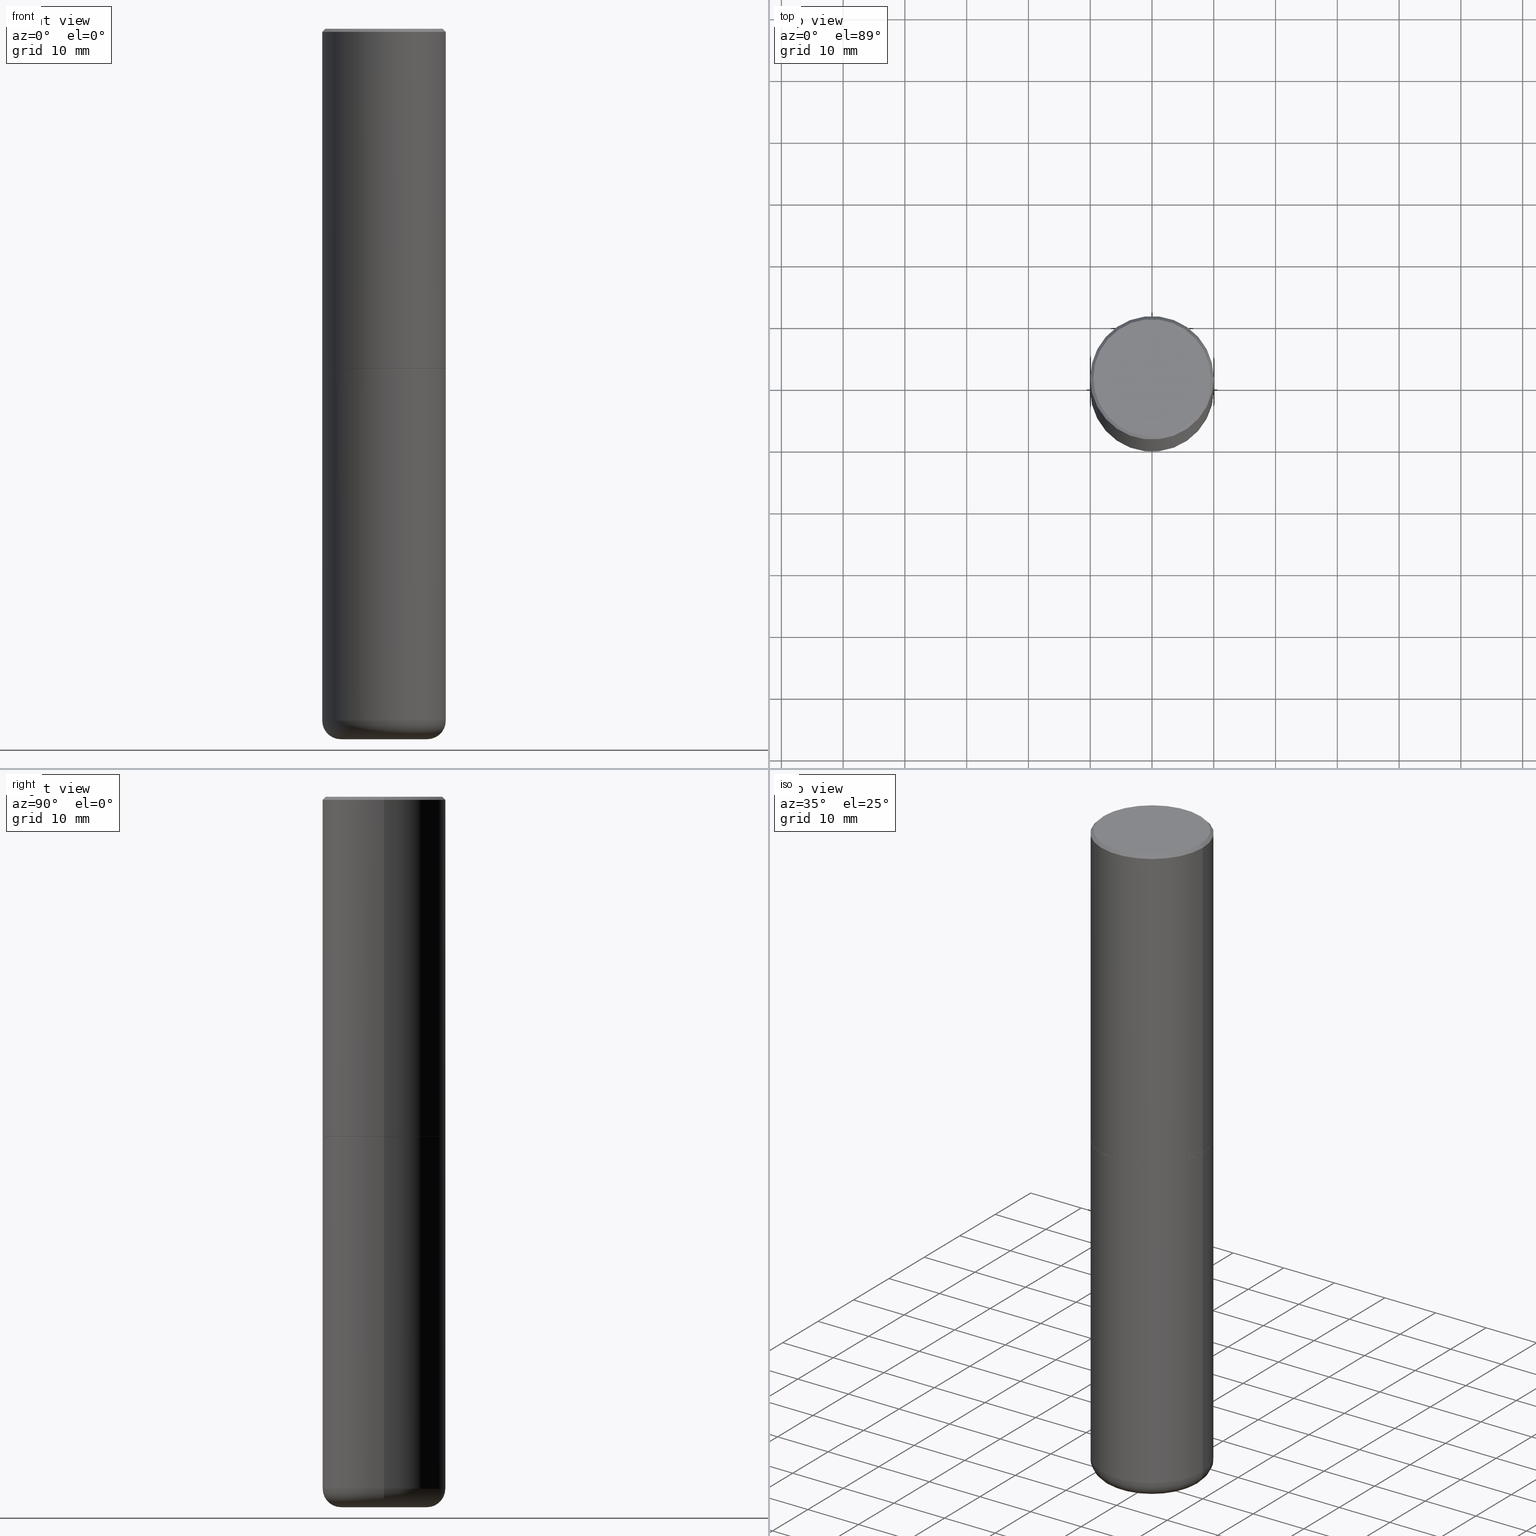
[diagram: canonical four-view strip — front | top / right | iso, engineering-drawing reading convention]
A machine part, canonical four-view strip (front | top / right | iso — engineering-drawing reading convention). The complete STEP part file that produces these views, byte-faithful:
ISO-10303-21;
HEADER;
FILE_DESCRIPTION (( 'STEP AP203' ),
    '1' );
FILE_NAME ('74833.STEP',
    '2024-05-02T19:22:15',
    ( '' ),
    ( '' ),
    'SwSTEP 2.0',
    'SolidWorks 2023',
    '' );
FILE_SCHEMA (( 'CONFIG_CONTROL_DESIGN' ));
ENDSEC;

DATA;
#1 = PRODUCT_RELATED_PRODUCT_CATEGORY ( 'detail', '', ( #241 ) ) ;
#2 = AXIS2_PLACEMENT_3D ( 'NONE', #32, #370, #250 ) ;
#3 = DIRECTION ( 'NONE',  ( 0.7071067811866199593, -2.468850131083015945E-15, 0.7071067811864750752 ) ) ;
#4 = ORIENTED_EDGE ( 'NONE', *, *, #326, .T. ) ;
#5 = EDGE_CURVE ( 'NONE', #162, #307, #29, .T. ) ;
#6 = DIRECTION ( 'NONE',  ( -1.000000000000000000, 6.982962677686265922E-15, -4.876176775795935793E-29 ) ) ;
#7 = EDGE_CURVE ( 'NONE', #286, #351, #149, .T. ) ;
#8 = CARTESIAN_POINT ( 'NONE',  ( 5.295418152913293224E-29, -7.560453691130945845E-15, -2.165399999999999547 ) ) ;
#9 = AXIS2_PLACEMENT_3D ( 'NONE', #35, #159, #190 ) ;
#10 = APPLICATION_CONTEXT ( 'configuration controlled 3d designs of mechanical parts and assemblies' ) ;
#11 = EDGE_CURVE ( 'NONE', #298, #412, #294, .T. ) ;
#12 = DIRECTION ( 'NONE',  ( -2.445468806185136597E-29, 3.491481338843145583E-15, 1.000000000000000000 ) ) ;
#13 = COORDINATED_UNIVERSAL_TIME_OFFSET ( 5, 0, .BEHIND. ) ;
#14 = CARTESIAN_POINT ( 'NONE',  ( -0.2756000000000000116, -1.322402767146636311E-14, -4.527599999999998737 ) ) ;
#15 = APPROVAL_STATUS ( 'not_yet_approved' ) ;
#16 = CARTESIAN_POINT ( 'NONE',  ( 0.2756000000000000116, -1.773253542371655569E-14, -4.527599999999998737 ) ) ;
#17 = CARTESIAN_POINT ( 'NONE',  ( 0.3736999999999999211, -2.667287895133367964E-15, 2.262311619753402158E-16 ) ) ;
#18 = AXIS2_PLACEMENT_3D ( 'NONE', #120, #389, #87 ) ;
#19 = VERTEX_POINT ( 'NONE', #332 ) ;
#20 = CALENDAR_DATE ( 2024, 2, 5 ) ;
#21 = CC_DESIGN_PERSON_AND_ORGANIZATION_ASSIGNMENT ( #108, #172, ( #195 ) ) ;
#22 = CARTESIAN_POINT ( 'NONE',  ( 1.078329470087335798E-28, -1.539568696362884818E-14, -4.409499999999999531 ) ) ;
#23 = ORIENTED_EDGE ( 'NONE', *, *, #245, .T. ) ;
#24 = TOROIDAL_SURFACE ( 'NONE', #186, 0.2756000000000000116, 0.1180999999999997052 ) ;
#25 = DATE_AND_TIME ( #214, #327 ) ;
#26 = EDGE_LOOP ( 'NONE', ( #133, #141 ) ) ;
#27 = AXIS2_PLACEMENT_3D ( 'NONE', #199, #170, #314 ) ;
#28 = AXIS2_PLACEMENT_3D ( 'NONE', #165, #204, #346 ) ;
#29 = LINE ( 'NONE', #219, #386 ) ;
#30 = CLOSED_SHELL ( 'NONE', ( #179, #330, #352, #292, #393, #45, #242, #301 ) ) ;
#31 = CARTESIAN_POINT ( 'NONE',  ( 5.295418152913293224E-29, -7.560453691130945845E-15, -2.165399999999999547 ) ) ;
#32 = CARTESIAN_POINT ( 'NONE',  ( 5.295418152913293224E-29, -7.560453691130945845E-15, -2.165399999999999547 ) ) ;
#33 = CARTESIAN_POINT ( 'NONE',  ( 0.2756000000000000116, -1.732019147759918314E-14, -4.409499999999999531 ) ) ;
#34 = DIRECTION ( 'NONE',  ( -2.445468806185136597E-29, 3.491481338843145583E-15, 1.000000000000000000 ) ) ;
#35 = CARTESIAN_POINT ( 'NONE',  ( 1.107210456688382074E-28, -1.580803090974622074E-14, -4.527599999999998737 ) ) ;
#36 = AXIS2_PLACEMENT_3D ( 'NONE', #284, #207, #316 ) ;
#37 = ORIENTED_EDGE ( 'NONE', *, *, #69, .T. ) ;
#38 = FACE_OUTER_BOUND ( 'NONE', #26, .T. ) ;
#39 = EDGE_CURVE ( 'NONE', #388, #162, #161, .T. ) ;
#40 = ORIENTED_EDGE ( 'NONE', *, *, #52, .F. ) ;
#41 = DIRECTION ( 'NONE',  ( -2.445468806185136597E-29, 3.491481338843145583E-15, 1.000000000000000000 ) ) ;
#42 = APPROVAL_DATE_TIME ( #200, #88 ) ;
#43 = CIRCLE ( 'NONE', #18, 0.3736999999999999211 ) ;
#44 = CIRCLE ( 'NONE', #319, 0.1180999999999997191 ) ;
#45 = ADVANCED_FACE ( 'NONE', ( #288 ), #118, .T. ) ;
#46 = EDGE_LOOP ( 'NONE', ( #277, #385, #23, #146 ) ) ;
#47 = CALENDAR_DATE ( 2024, 2, 5 ) ;
#48 = CARTESIAN_POINT ( 'NONE',  ( 4.890937612370294178E-31, -6.982962677686321191E-17, -0.02000000000000008715 ) ) ;
#49 = CARTESIAN_POINT ( 'NONE',  ( -0.3926999999999999935, -4.764853913452808876E-15, -2.165399999999999547 ) ) ;
#50 = EDGE_LOOP ( 'NONE', ( #68, #309, #148, #212 ) ) ;
#51 = CYLINDRICAL_SURFACE ( 'NONE', #275, 0.3936999999999999389 ) ;
#52 = EDGE_CURVE ( 'NONE', #412, #298, #329, .T. ) ;
#53 = AXIS2_PLACEMENT_3D ( 'NONE', #137, #142, #274 ) ;
#54 = APPROVAL_DATE_TIME ( #119, #57 ) ;
#55 = EDGE_LOOP ( 'NONE', ( #135, #37 ) ) ;
#56 = EDGE_CURVE ( 'NONE', #412, #162, #122, .T. ) ;
#57 = APPROVAL ( #387, 'UNSPECIFIED' ) ;
#58 = ORIENTED_EDGE ( 'NONE', *, *, #245, .F. ) ;
#59 = AXIS2_PLACEMENT_3D ( 'NONE', #248, #394, #354 ) ;
#60 = APPROVAL_PERSON_ORGANIZATION ( #145, #57, #318 ) ;
#61 = DIRECTION ( 'NONE',  ( 1.000000000000000000, -6.982962677686268288E-15, 0.000000000000000000 ) ) ;
#62 = DIRECTION ( 'NONE',  ( -1.000000000000000000, 7.105427357601005014E-15, 0.000000000000000000 ) ) ;
#63 = CARTESIAN_POINT ( 'NONE',  ( 0.3937000000000002720, -1.030615461599718763E-14, -2.164399999999999658 ) ) ;
#64 = DIRECTION ( 'NONE',  ( -2.445468806185136597E-29, 3.491481338843145583E-15, 1.000000000000000000 ) ) ;
#65 = ORIENTED_EDGE ( 'NONE', *, *, #272, .T. ) ;
#66 = CARTESIAN_POINT ( 'NONE',  ( 5.292972684107107621E-29, -7.556962209792102838E-15, -2.164399999999999658 ) ) ;
#67 = CC_DESIGN_PERSON_AND_ORGANIZATION_ASSIGNMENT ( #134, #192, ( #241 ) ) ;
#68 = ORIENTED_EDGE ( 'NONE', *, *, #226, .F. ) ;
#69 = EDGE_CURVE ( 'NONE', #351, #286, #43, .T. ) ;
#70 = DIRECTION ( 'NONE',  ( 1.000000000000000000, -6.982962677686266711E-15, 0.000000000000000000 ) ) ;
#71 = AXIS2_PLACEMENT_3D ( 'NONE', #256, #333, #6 ) ;
#72 = PERSON_AND_ORGANIZATION ( #198, #320 ) ;
#73 = CALENDAR_DATE ( 2024, 2, 5 ) ;
#74 = FACE_OUTER_BOUND ( 'NONE', #348, .T. ) ;
#75 = LOCAL_TIME ( 15, 22, 15.00000000000000000, #227 ) ;
#76 = DIRECTION ( 'NONE',  ( -2.445468806185136597E-29, 3.491481338843145583E-15, 1.000000000000000000 ) ) ;
#77 = CARTESIAN_POINT ( 'NONE',  ( 0.000000000000000000, 0.000000000000000000, 0.000000000000000000 ) ) ;
#78 = DIRECTION ( 'NONE',  ( 1.000000000000000000, -6.982962677686268288E-15, 4.883557194083112901E-29 ) ) ;
#79 = DIRECTION ( 'NONE',  ( 0.7071067811865454633, -7.319954787623248157E-15, -0.7071067811865495711 ) ) ;
#80 = CALENDAR_DATE ( 2024, 2, 5 ) ;
#81 = EDGE_CURVE ( 'NONE', #289, #325, #213, .T. ) ;
#82 = PLANE ( 'NONE',  #181 ) ;
#83 = CC_DESIGN_PERSON_AND_ORGANIZATION_ASSIGNMENT ( #175, #313, ( #195 ) ) ;
#84 = VECTOR ( 'NONE', #371, 39.37007874015748143 ) ;
#85 = APPLICATION_CONTEXT ( 'configuration controlled 3d designs of mechanical parts and assemblies' ) ;
#86 = ORIENTED_EDGE ( 'NONE', *, *, #384, .T. ) ;
#87 = DIRECTION ( 'NONE',  ( 1.000000000000000000, -6.982962677686266711E-15, 4.877734241229876808E-29 ) ) ;
#88 = APPROVAL ( #196, 'UNSPECIFIED' ) ;
#89 = VERTEX_POINT ( 'NONE', #14 ) ;
#90 = VECTOR ( 'NONE', #104, 39.37007874015748143 ) ;
#91 = ORIENTED_EDGE ( 'NONE', *, *, #39, .F. ) ;
#92 = DIRECTION ( 'NONE',  ( 2.438088387897960049E-29, -3.491481338843145188E-15, -1.000000000000000000 ) ) ;
#93 = DIRECTION ( 'NONE',  ( -2.445468806185136597E-29, 3.491481338843145583E-15, 1.000000000000000000 ) ) ;
#94 = FACE_OUTER_BOUND ( 'NONE', #50, .T. ) ;
#95 = CARTESIAN_POINT ( 'NONE',  ( -0.3937000000000000499, -8.680663576692383017E-15, -2.165399999999999547 ) ) ;
#96 = EDGE_CURVE ( 'NONE', #325, #306, #296, .T. ) ;
#97 = DESIGN_CONTEXT ( 'detailed design', #10, 'design' ) ;
#98 = DIRECTION ( 'NONE',  ( 7.105427357601001859E-15, 1.000000000000000000, -3.491481338843145583E-15 ) ) ;
#99 = DIRECTION ( 'NONE',  ( 1.000000000000000000, -6.982962677686268288E-15, 4.883557194083112901E-29 ) ) ;
#100 = DIRECTION ( 'NONE',  ( 2.438088387897960049E-29, -3.491481338843145188E-15, -1.000000000000000000 ) ) ;
#101 = CIRCLE ( 'NONE', #243, 0.3936999999999999389 ) ;
#102 = FACE_OUTER_BOUND ( 'NONE', #138, .T. ) ;
#103 = APPLICATION_PROTOCOL_DEFINITION ( 'international standard', 'config_control_design', 1994, #85 ) ;
#104 = DIRECTION ( 'NONE',  ( -0.7071067811865454633, 2.468850131082235367E-15, -0.7071067811865495711 ) ) ;
#105 = CIRCLE ( 'NONE', #9, 0.2756000000000000116 ) ;
#106 = DIRECTION ( 'NONE',  ( 2.445468806185136597E-29, -3.491481338843145583E-15, -1.000000000000000000 ) ) ;
#107 = DIRECTION ( 'NONE',  ( -2.445468806185136877E-29, 3.491481338843145188E-15, 1.000000000000000000 ) ) ;
#108 = PERSON_AND_ORGANIZATION ( #198, #320 ) ;
#109 = EDGE_LOOP ( 'NONE', ( #40, #345 ) ) ;
#110 = EDGE_CURVE ( 'NONE', #89, #289, #44, .T. ) ;
#111 = CARTESIAN_POINT ( 'NONE',  ( -0.3926999999999999935, -4.770152367801032067E-15, -2.165399999999999547 ) ) ;
#112 = ORIENTED_EDGE ( 'NONE', *, *, #114, .F. ) ;
#113 = CONICAL_SURFACE ( 'NONE', #267, 0.3937000000000001054, 0.7853981633974453924 ) ;
#114 = EDGE_CURVE ( 'NONE', #306, #325, #143, .T. ) ;
#115 = ADVANCED_FACE ( 'NONE', ( #156 ), #291, .F. ) ;
#116 = ORIENTED_EDGE ( 'NONE', *, *, #56, .F. ) ;
#117 =( GEOMETRIC_REPRESENTATION_CONTEXT ( 3 ) GLOBAL_UNCERTAINTY_ASSIGNED_CONTEXT ( ( #253 ) ) GLOBAL_UNIT_ASSIGNED_CONTEXT ( ( #407, #410, #308 ) ) REPRESENTATION_CONTEXT ( 'NONE', 'WORKASPACE' ) );
#118 = CONICAL_SURFACE ( 'NONE', #203, 0.3926999999999999935, 0.7853981633975507526 ) ;
#119 = DATE_AND_TIME ( #80, #402 ) ;
#120 = CARTESIAN_POINT ( 'NONE',  ( -5.532412495976664402E-45, 7.898818803016371119E-31, 2.262311619753217762E-16 ) ) ;
#121 = SHAPE_DEFINITION_REPRESENTATION ( #180, #144 ) ;
#122 = LINE ( 'NONE', #280, #246 ) ;
#123 = DIRECTION ( 'NONE',  ( -2.445468806185136597E-29, 3.491481338843145583E-15, 1.000000000000000000 ) ) ;
#124 = AXIS2_PLACEMENT_3D ( 'NONE', #349, #276, #418 ) ;
#125 = ORIENTED_EDGE ( 'NONE', *, *, #81, .F. ) ;
#126 = FACE_OUTER_BOUND ( 'NONE', #361, .T. ) ;
#127 = DIRECTION ( 'NONE',  ( -2.438088387897960049E-29, 3.491481338843145188E-15, 1.000000000000000000 ) ) ;
#128 = CARTESIAN_POINT ( 'NONE',  ( 5.295418152913293224E-29, -7.560453691130945845E-15, -2.165399999999999547 ) ) ;
#129 = LOCAL_TIME ( 15, 22, 15.00000000000000000, #376 ) ;
#130 = ORIENTED_EDGE ( 'NONE', *, *, #96, .T. ) ;
#131 = DATE_AND_TIME ( #20, #75 ) ;
#132 = CARTESIAN_POINT ( 'NONE',  ( 0.000000000000000000, 0.000000000000000000, 0.000000000000000000 ) ) ;
#133 = ORIENTED_EDGE ( 'NONE', *, *, #355, .F. ) ;
#134 = PERSON_AND_ORGANIZATION ( #198, #320 ) ;
#135 = ORIENTED_EDGE ( 'NONE', *, *, #7, .T. ) ;
#136 = DIRECTION ( 'NONE',  ( 1.000000000000000000, -6.982962677686265133E-15, 0.000000000000000000 ) ) ;
#137 = CARTESIAN_POINT ( 'NONE',  ( 0.000000000000000000, 0.000000000000000000, 0.000000000000000000 ) ) ;
#138 = EDGE_LOOP ( 'NONE', ( #337, #283, #150, #238 ) ) ;
#139 = APPROVAL ( #15, 'UNSPECIFIED' ) ;
#140 = EDGE_LOOP ( 'NONE', ( #4, #365, #396, #184 ) ) ;
#141 = ORIENTED_EDGE ( 'NONE', *, *, #322, .F. ) ;
#142 = DIRECTION ( 'NONE',  ( -2.445468806185136597E-29, 3.491481338843145583E-15, 1.000000000000000000 ) ) ;
#143 = CIRCLE ( 'NONE', #2, 0.3937000000000000499 ) ;
#144 = ADVANCED_BREP_SHAPE_REPRESENTATION ( '74833', ( #416, #260, #28 ), #117 ) ;
#145 = PERSON_AND_ORGANIZATION ( #198, #320 ) ;
#146 = ORIENTED_EDGE ( 'NONE', *, *, #400, .T. ) ;
#147 = AXIS2_PLACEMENT_3D ( 'NONE', #158, #167, #368 ) ;
#148 = ORIENTED_EDGE ( 'NONE', *, *, #5, .T. ) ;
#149 = CIRCLE ( 'NONE', #208, 0.3736999999999999211 ) ;
#150 = ORIENTED_EDGE ( 'NONE', *, *, #236, .F. ) ;
#151 = CC_DESIGN_DATE_AND_TIME_ASSIGNMENT ( #163, #271, ( #321 ) ) ;
#152 = DIRECTION ( 'NONE',  ( -2.445468806185136597E-29, 3.491481338843145583E-15, 1.000000000000000000 ) ) ;
#153 = CIRCLE ( 'NONE', #36, 0.2756000000000000116 ) ;
#154 = DIRECTION ( 'NONE',  ( 1.000000000000000000, -6.982962677686266711E-15, 0.000000000000000000 ) ) ;
#155 = SECURITY_CLASSIFICATION ( '', '', #273 ) ;
#156 = FACE_OUTER_BOUND ( 'NONE', #171, .T. ) ;
#157 = DIRECTION ( 'NONE',  ( 1.000000000000000000, -6.982962677686273021E-15, 0.000000000000000000 ) ) ;
#158 = CARTESIAN_POINT ( 'NONE',  ( 4.890937612370294178E-31, -6.982962677686321191E-17, -0.02000000000000008715 ) ) ;
#159 = DIRECTION ( 'NONE',  ( -2.445468806185136597E-29, 3.491481338843145583E-15, 1.000000000000000000 ) ) ;
#160 = CC_DESIGN_PERSON_AND_ORGANIZATION_ASSIGNMENT ( #169, #201, ( #321 ) ) ;
#161 = CIRCLE ( 'NONE', #191, 0.3937000000000002720 ) ;
#162 = VERTEX_POINT ( 'NONE', #63 ) ;
#163 = DATE_AND_TIME ( #47, #358 ) ;
#164 = VECTOR ( 'NONE', #107, 39.37007874015748143 ) ;
#165 = CARTESIAN_POINT ( 'NONE',  ( 0.000000000000000000, 0.000000000000000000, 0.000000000000000000 ) ) ;
#166 = DIRECTION ( 'NONE',  ( 1.000000000000000000, -6.982962677686269077E-15, 0.000000000000000000 ) ) ;
#167 = DIRECTION ( 'NONE',  ( 2.445468806185136597E-29, -3.491481338843145583E-15, -1.000000000000000000 ) ) ;
#168 = FACE_OUTER_BOUND ( 'NONE', #140, .T. ) ;
#169 = PERSON_AND_ORGANIZATION ( #198, #320 ) ;
#170 = DIRECTION ( 'NONE',  ( -2.445468806185136597E-29, 3.491481338843145583E-15, 1.000000000000000000 ) ) ;
#171 = EDGE_LOOP ( 'NONE', ( #302, #130 ) ) ;
#172 = PERSON_AND_ORGANIZATION_ROLE ( 'creator' ) ;
#173 = ORIENTED_EDGE ( 'NONE', *, *, #110, .F. ) ;
#174 = VECTOR ( 'NONE', #254, 39.37007874015748143 ) ;
#175 = PERSON_AND_ORGANIZATION ( #198, #320 ) ;
#176 = ADVANCED_FACE ( 'NONE', ( #102 ), #24, .T. ) ;
#177 = DIRECTION ( 'NONE',  ( -2.445468806185136597E-29, 3.491481338843145583E-15, 1.000000000000000000 ) ) ;
#178 = DIRECTION ( 'NONE',  ( -2.445468806185136597E-29, 3.491481338843145583E-15, 1.000000000000000000 ) ) ;
#179 = ADVANCED_FACE ( 'NONE', ( #126 ), #353, .T. ) ;
#180 = PRODUCT_DEFINITION_SHAPE ( 'NONE', 'NONE',  #321 ) ;
#181 = AXIS2_PLACEMENT_3D ( 'NONE', #287, #92, #363 ) ;
#182 = ORIENTED_EDGE ( 'NONE', *, *, #322, .T. ) ;
#183 = ORIENTED_EDGE ( 'NONE', *, *, #69, .F. ) ;
#184 = ORIENTED_EDGE ( 'NONE', *, *, #5, .F. ) ;
#185 = ADVANCED_FACE ( 'NONE', ( #240 ), #202, .T. ) ;
#186 = AXIS2_PLACEMENT_3D ( 'NONE', #255, #398, #99 ) ;
#187 = ORIENTED_EDGE ( 'NONE', *, *, #236, .T. ) ;
#188 = CARTESIAN_POINT ( 'NONE',  ( 0.3937000000000001054, -2.770807688499516128E-15, -0.02000000000000008715 ) ) ;
#189 = DIRECTION ( 'NONE',  ( 1.000000000000000000, -6.982962677686268288E-15, 0.000000000000000000 ) ) ;
#190 = DIRECTION ( 'NONE',  ( 1.000000000000000000, -6.982962677686265922E-15, 0.000000000000000000 ) ) ;
#191 = AXIS2_PLACEMENT_3D ( 'NONE', #390, #34, #359 ) ;
#192 = PERSON_AND_ORGANIZATION_ROLE ( 'design_owner' ) ;
#193 = LINE ( 'NONE', #197, #90 ) ;
#194 = AXIS2_PLACEMENT_3D ( 'NONE', #408, #127, #405 ) ;
#195 = PRODUCT_DEFINITION_FORMATION_WITH_SPECIFIED_SOURCE ( 'ANY', '', #241, .NOT_KNOWN. ) ;
#196 = APPROVAL_STATUS ( 'not_yet_approved' ) ;
#197 = CARTESIAN_POINT ( 'NONE',  ( -0.3937000000000001054, 2.679362779428220707E-15, -0.02000000000000008715 ) ) ;
#198 = PERSON ( 'UNSPECIFIED', 'UNSPECIFIED', 'UNSPECIFIED', ('UNSPECIFIED'), ('UNSPECIFIED'), ('UNSPECIFIED') ) ;
#199 = CARTESIAN_POINT ( 'NONE',  ( 5.295418152913293224E-29, -7.560453691130945845E-15, -2.165399999999999547 ) ) ;
#200 = DATE_AND_TIME ( #73, #129 ) ;
#201 = PERSON_AND_ORGANIZATION_ROLE ( 'creator' ) ;
#202 = TOROIDAL_SURFACE ( 'NONE', #220, 0.2756000000000000116, 0.1180999999999997052 ) ;
#203 = AXIS2_PLACEMENT_3D ( 'NONE', #8, #123, #61 ) ;
#204 = DIRECTION ( 'NONE',  ( 0.000000000000000000, 0.000000000000000000, 1.000000000000000000 ) ) ;
#205 = ORIENTED_EDGE ( 'NONE', *, *, #395, .T. ) ;
#206 = CARTESIAN_POINT ( 'NONE',  ( 0.3936999999999998279, -1.814487936983393140E-14, -4.409499999999999531 ) ) ;
#207 = DIRECTION ( 'NONE',  ( -2.445468806185136597E-29, 3.491481338843145583E-15, 1.000000000000000000 ) ) ;
#208 = AXIS2_PLACEMENT_3D ( 'NONE', #360, #93, #251 ) ;
#209 = CARTESIAN_POINT ( 'NONE',  ( 1.078329470087335798E-28, -1.539568696362884818E-14, -4.409499999999999531 ) ) ;
#210 = CIRCLE ( 'NONE', #379, 0.3937000000000001054 ) ;
#211 = DATE_TIME_ROLE ( 'classification_date' ) ;
#212 = ORIENTED_EDGE ( 'NONE', *, *, #400, .F. ) ;
#213 = LINE ( 'NONE', #244, #174 ) ;
#214 = CALENDAR_DATE ( 2024, 2, 5 ) ;
#215 = VERTEX_POINT ( 'NONE', #206 ) ;
#216 = AXIS2_PLACEMENT_3D ( 'NONE', #77, #152, #237 ) ;
#217 = ADVANCED_FACE ( 'NONE', ( #74 ), #51, .T. ) ;
#218 = ORIENTED_EDGE ( 'NONE', *, *, #11, .T. ) ;
#219 = CARTESIAN_POINT ( 'NONE',  ( 0.3937000000000002164, -2.749192406205084794E-15, 1.919750796630861012E-29 ) ) ;
#220 = AXIS2_PLACEMENT_3D ( 'NONE', #22, #382, #78 ) ;
#221 = DIRECTION ( 'NONE',  ( -1.000000000000000000, 6.982962677686265922E-15, -4.876176775795935793E-29 ) ) ;
#222 = CARTESIAN_POINT ( 'NONE',  ( -0.3937000000000002164, 2.797406750687515970E-15, -1.936584745033357576E-29 ) ) ;
#223 = CARTESIAN_POINT ( 'NONE',  ( 4.890937612370294178E-31, -6.982962677686321191E-17, -0.02000000000000008715 ) ) ;
#224 = PLANE ( 'NONE',  #194 ) ;
#225 = ORIENTED_EDGE ( 'NONE', *, *, #81, .T. ) ;
#226 = EDGE_CURVE ( 'NONE', #388, #19, #403, .T. ) ;
#227 = COORDINATED_UNIVERSAL_TIME_OFFSET ( 5, 0, .BEHIND. ) ;
#228 = PLANE ( 'NONE',  #239 ) ;
#229 = CIRCLE ( 'NONE', #257, 0.3937000000000002720 ) ;
#230 = CC_DESIGN_APPROVAL ( #88, ( #195 ) ) ;
#231 = ORIENTED_EDGE ( 'NONE', *, *, #56, .T. ) ;
#232 = CLOSED_SHELL ( 'NONE', ( #261, #176, #115, #217, #185, #259 ) ) ;
#233 = EDGE_LOOP ( 'NONE', ( #173, #182, #338, #234 ) ) ;
#234 = ORIENTED_EDGE ( 'NONE', *, *, #272, .F. ) ;
#235 = LINE ( 'NONE', #344, #164 ) ;
#236 = EDGE_CURVE ( 'NONE', #215, #289, #391, .T. ) ;
#237 = DIRECTION ( 'NONE',  ( 1.000000000000000000, -6.982962677686266711E-15, 4.876176775795935793E-29 ) ) ;
#238 = ORIENTED_EDGE ( 'NONE', *, *, #317, .F. ) ;
#239 = AXIS2_PLACEMENT_3D ( 'NONE', #374, #100, #221 ) ;
#240 = FACE_OUTER_BOUND ( 'NONE', #233, .T. ) ;
#241 = PRODUCT ( '74833', '74833', '', ( #342 ) ) ;
#242 = ADVANCED_FACE ( 'NONE', ( #334 ), #224, .F. ) ;
#243 = AXIS2_PLACEMENT_3D ( 'NONE', #209, #41, #136 ) ;
#244 = CARTESIAN_POINT ( 'NONE',  ( -0.3936999999999999389, 2.797406750687513998E-15, -1.936584745033356455E-29 ) ) ;
#245 = EDGE_CURVE ( 'NONE', #286, #19, #193, .T. ) ;
#246 = VECTOR ( 'NONE', #3, 39.37007874015748143 ) ;
#247 = CARTESIAN_POINT ( 'NONE',  ( 0.3937000000000000499, -1.030964609733602906E-14, -2.165399999999999547 ) ) ;
#248 = CARTESIAN_POINT ( 'NONE',  ( 5.295418152913293224E-29, -7.560453691130945845E-15, -2.165399999999999547 ) ) ;
#249 = ORIENTED_EDGE ( 'NONE', *, *, #326, .F. ) ;
#250 = DIRECTION ( 'NONE',  ( 1.000000000000000000, -6.982962677686265133E-15, 0.000000000000000000 ) ) ;
#251 = DIRECTION ( 'NONE',  ( 1.000000000000000000, -6.982962677686266711E-15, 4.877734241229876808E-29 ) ) ;
#252 = CARTESIAN_POINT ( 'NONE',  ( -0.3937000000000002720, -1.015989167596965718E-15, -2.164399999999999658 ) ) ;
#253 = UNCERTAINTY_MEASURE_WITH_UNIT (LENGTH_MEASURE( 1.000000000000000082E-05 ), #407, 'distance_accuracy_value', 'NONE');
#254 = DIRECTION ( 'NONE',  ( -2.445468806185136877E-29, 3.491481338843145188E-15, 1.000000000000000000 ) ) ;
#255 = CARTESIAN_POINT ( 'NONE',  ( 1.078329470087335798E-28, -1.539568696362884818E-14, -4.409499999999999531 ) ) ;
#256 = CARTESIAN_POINT ( 'NONE',  ( 5.295418152913293224E-29, -7.560453691130945845E-15, -2.165399999999999547 ) ) ;
#257 = AXIS2_PLACEMENT_3D ( 'NONE', #66, #178, #166 ) ;
#258 = DIRECTION ( 'NONE',  ( 1.000000000000000000, -6.982962677686266711E-15, 4.876176775795935793E-29 ) ) ;
#259 = ADVANCED_FACE ( 'NONE', ( #38 ), #228, .T. ) ;
#260 = MANIFOLD_SOLID_BREP ( 'Body-Move/Copy2[2]', #30 ) ;
#261 = ADVANCED_FACE ( 'NONE', ( #366 ), #312, .T. ) ;
#262 = APPROVAL_DATE_TIME ( #131, #139 ) ;
#263 = DIRECTION ( 'NONE',  ( -2.445468806185136597E-29, 3.491481338843145583E-15, 1.000000000000000000 ) ) ;
#264 = CARTESIAN_POINT ( 'NONE',  ( 4.890937612370294178E-31, -6.982962677686321191E-17, -0.02000000000000008715 ) ) ;
#265 = APPROVAL_ROLE ( '' ) ;
#266 = CARTESIAN_POINT ( 'NONE',  ( 1.078329470087335798E-28, -1.539568696362884818E-14, -4.409499999999999531 ) ) ;
#267 = AXIS2_PLACEMENT_3D ( 'NONE', #264, #106, #324 ) ;
#268 = CARTESIAN_POINT ( 'NONE',  ( -0.3736999999999999211, 2.644447966039789453E-15, 2.262311619753034352E-16 ) ) ;
#269 = LINE ( 'NONE', #383, #290 ) ;
#270 = ORIENTED_EDGE ( 'NONE', *, *, #377, .F. ) ;
#271 = DATE_TIME_ROLE ( 'creation_date' ) ;
#272 = EDGE_CURVE ( 'NONE', #289, #215, #101, .T. ) ;
#273 = SECURITY_CLASSIFICATION_LEVEL ( 'unclassified' ) ;
#274 = DIRECTION ( 'NONE',  ( 1.000000000000000000, -6.982962677686266711E-15, 4.876176775795935793E-29 ) ) ;
#275 = AXIS2_PLACEMENT_3D ( 'NONE', #132, #263, #258 ) ;
#276 = DIRECTION ( 'NONE',  ( -2.445468806185136597E-29, 3.491481338843145583E-15, 1.000000000000000000 ) ) ;
#277 = ORIENTED_EDGE ( 'NONE', *, *, #347, .F. ) ;
#278 = ORIENTED_EDGE ( 'NONE', *, *, #52, .T. ) ;
#279 = AXIS2_PLACEMENT_3D ( 'NONE', #266, #12, #369 ) ;
#280 = CARTESIAN_POINT ( 'NONE',  ( 0.3926999999999999935, -1.030266313465834305E-14, -2.165399999999999547 ) ) ;
#281 = AXIS2_PLACEMENT_3D ( 'NONE', #128, #362, #328 ) ;
#282 = PERSON_AND_ORGANIZATION_ROLE ( 'classification_officer' ) ;
#283 = ORIENTED_EDGE ( 'NONE', *, *, #110, .T. ) ;
#284 = CARTESIAN_POINT ( 'NONE',  ( 1.107210456688382074E-28, -1.580803090974622074E-14, -4.527599999999998737 ) ) ;
#285 = CC_DESIGN_DATE_AND_TIME_ASSIGNMENT ( #25, #211, ( #155 ) ) ;
#286 = VERTEX_POINT ( 'NONE', #268 ) ;
#287 = CARTESIAN_POINT ( 'NONE',  ( 2.609533152651356620E-15, 0.3736999999999999211, -1.191650995338022328E-15 ) ) ;
#288 = FACE_OUTER_BOUND ( 'NONE', #323, .T. ) ;
#289 = VERTEX_POINT ( 'NONE', #411 ) ;
#290 = VECTOR ( 'NONE', #79, 39.37007874015748143 ) ;
#291 = PLANE ( 'NONE',  #71 ) ;
#292 = ADVANCED_FACE ( 'NONE', ( #406 ), #341, .T. ) ;
#293 = DIRECTION ( 'NONE',  ( -2.445468806185136877E-29, 3.491481338843145188E-15, 1.000000000000000000 ) ) ;
#294 = CIRCLE ( 'NONE', #295, 0.3926999999999999935 ) ;
#295 = AXIS2_PLACEMENT_3D ( 'NONE', #31, #64, #189 ) ;
#296 = CIRCLE ( 'NONE', #281, 0.3937000000000000499 ) ;
#297 = CC_DESIGN_APPROVAL ( #57, ( #155 ) ) ;
#298 = VERTEX_POINT ( 'NONE', #49 ) ;
#299 = PERSON_AND_ORGANIZATION ( #198, #320 ) ;
#300 = ORIENTED_EDGE ( 'NONE', *, *, #395, .F. ) ;
#301 = ADVANCED_FACE ( 'NONE', ( #417 ), #82, .F. ) ;
#302 = ORIENTED_EDGE ( 'NONE', *, *, #114, .T. ) ;
#303 = CYLINDRICAL_SURFACE ( 'NONE', #53, 0.3937000000000002164 ) ;
#304 = CARTESIAN_POINT ( 'NONE',  ( 0.3926999999999999935, -1.030266313465834305E-14, -2.165399999999999547 ) ) ;
#305 = DIMENSIONAL_EXPONENTS ( 1.000000000000000000, 0.000000000000000000, 0.000000000000000000, 0.000000000000000000, 0.000000000000000000, 0.000000000000000000, 0.000000000000000000 ) ;
#306 = VERTEX_POINT ( 'NONE', #247 ) ;
#307 = VERTEX_POINT ( 'NONE', #188 ) ;
#308 =( NAMED_UNIT ( * ) SI_UNIT ( $, .STERADIAN. ) SOLID_ANGLE_UNIT ( ) );
#309 = ORIENTED_EDGE ( 'NONE', *, *, #39, .T. ) ;
#310 = CIRCLE ( 'NONE', #331, 0.3937000000000001054 ) ;
#311 = CC_DESIGN_APPROVAL ( #139, ( #321 ) ) ;
#312 = CYLINDRICAL_SURFACE ( 'NONE', #124, 0.3936999999999999389 ) ;
#313 = PERSON_AND_ORGANIZATION_ROLE ( 'design_supplier' ) ;
#314 = DIRECTION ( 'NONE',  ( 1.000000000000000000, -6.982962677686268288E-15, 0.000000000000000000 ) ) ;
#315 = COORDINATED_UNIVERSAL_TIME_OFFSET ( 5, 0, .BEHIND. ) ;
#316 = DIRECTION ( 'NONE',  ( 1.000000000000000000, -6.982962677686265922E-15, 0.000000000000000000 ) ) ;
#317 = EDGE_CURVE ( 'NONE', #372, #215, #401, .T. ) ;
#318 = APPROVAL_ROLE ( '' ) ;
#319 = AXIS2_PLACEMENT_3D ( 'NONE', #392, #98, #62 ) ;
#320 = ORGANIZATION ( 'UNSPECIFIED', 'UNSPECIFIED', '' ) ;
#321 = PRODUCT_DEFINITION ( 'UNKNOWN', '', #195, #97 ) ;
#322 = EDGE_CURVE ( 'NONE', #89, #372, #105, .T. ) ;
#323 = EDGE_LOOP ( 'NONE', ( #300, #218, #231, #91 ) ) ;
#324 = DIRECTION ( 'NONE',  ( -1.000000000000000000, 6.982962677686266711E-15, 0.000000000000000000 ) ) ;
#325 = VERTEX_POINT ( 'NONE', #95 ) ;
#326 = EDGE_CURVE ( 'NONE', #162, #388, #229, .T. ) ;
#327 = LOCAL_TIME ( 15, 22, 15.00000000000000000, #315 ) ;
#328 = DIRECTION ( 'NONE',  ( 1.000000000000000000, -6.982962677686265133E-15, 0.000000000000000000 ) ) ;
#329 = CIRCLE ( 'NONE', #59, 0.3926999999999999935 ) ;
#330 = ADVANCED_FACE ( 'NONE', ( #168 ), #303, .T. ) ;
#331 = AXIS2_PLACEMENT_3D ( 'NONE', #223, #76, #70 ) ;
#332 = CARTESIAN_POINT ( 'NONE',  ( -0.3937000000000001054, 2.679362779428220707E-15, -0.02000000000000008715 ) ) ;
#333 = DIRECTION ( 'NONE',  ( 2.438088387897960049E-29, -3.491481338843145188E-15, -1.000000000000000000 ) ) ;
#334 = FACE_OUTER_BOUND ( 'NONE', #109, .T. ) ;
#335 = AXIS2_PLACEMENT_3D ( 'NONE', #33, #399, #157 ) ;
#336 = APPROVAL_PERSON_ORGANIZATION ( #72, #88, #265 ) ;
#337 = ORIENTED_EDGE ( 'NONE', *, *, #355, .T. ) ;
#338 = ORIENTED_EDGE ( 'NONE', *, *, #317, .T. ) ;
#339 = APPROVAL_ROLE ( '' ) ;
#340 = ORIENTED_EDGE ( 'NONE', *, *, #96, .F. ) ;
#341 = CONICAL_SURFACE ( 'NONE', #147, 0.3937000000000001054, 0.7853981633974453924 ) ;
#342 = MECHANICAL_CONTEXT ( 'NONE', #85, 'mechanical' ) ;
#343 = CC_DESIGN_SECURITY_CLASSIFICATION ( #155, ( #195 ) ) ;
#344 = CARTESIAN_POINT ( 'NONE',  ( 0.3936999999999999389, -2.749192406205082822E-15, 1.919750796630859611E-29 ) ) ;
#345 = ORIENTED_EDGE ( 'NONE', *, *, #11, .F. ) ;
#346 = DIRECTION ( 'NONE',  ( 1.000000000000000000, 0.000000000000000000, 0.000000000000000000 ) ) ;
#347 = EDGE_CURVE ( 'NONE', #351, #307, #269, .T. ) ;
#348 = EDGE_LOOP ( 'NONE', ( #125, #65, #357, #340 ) ) ;
#349 = CARTESIAN_POINT ( 'NONE',  ( 0.000000000000000000, 0.000000000000000000, 0.000000000000000000 ) ) ;
#350 = FACE_OUTER_BOUND ( 'NONE', #375, .T. ) ;
#351 = VERTEX_POINT ( 'NONE', #17 ) ;
#352 = ADVANCED_FACE ( 'NONE', ( #350 ), #113, .T. ) ;
#353 = CONICAL_SURFACE ( 'NONE', #27, 0.3926999999999999935, 0.7853981633975507526 ) ;
#354 = DIRECTION ( 'NONE',  ( 1.000000000000000000, -6.982962677686268288E-15, 0.000000000000000000 ) ) ;
#355 = EDGE_CURVE ( 'NONE', #372, #89, #153, .T. ) ;
#356 = COORDINATED_UNIVERSAL_TIME_OFFSET ( 5, 0, .BEHIND. ) ;
#357 = ORIENTED_EDGE ( 'NONE', *, *, #377, .T. ) ;
#358 = LOCAL_TIME ( 15, 22, 15.00000000000000000, #13 ) ;
#359 = DIRECTION ( 'NONE',  ( 1.000000000000000000, -6.982962677686269077E-15, 0.000000000000000000 ) ) ;
#360 = CARTESIAN_POINT ( 'NONE',  ( -5.532412495976664402E-45, 7.898818803016371119E-31, 2.262311619753217762E-16 ) ) ;
#361 = EDGE_LOOP ( 'NONE', ( #278, #205, #249, #116 ) ) ;
#362 = DIRECTION ( 'NONE',  ( -2.445468806185136597E-29, 3.491481338843145583E-15, 1.000000000000000000 ) ) ;
#363 = DIRECTION ( 'NONE',  ( -1.000000000000000000, 6.982962677686265922E-15, -4.876176775795935793E-29 ) ) ;
#364 = APPROVAL_PERSON_ORGANIZATION ( #299, #139, #339 ) ;
#365 = ORIENTED_EDGE ( 'NONE', *, *, #226, .T. ) ;
#366 = FACE_OUTER_BOUND ( 'NONE', #378, .T. ) ;
#367 = CC_DESIGN_PERSON_AND_ORGANIZATION_ASSIGNMENT ( #414, #282, ( #155 ) ) ;
#368 = DIRECTION ( 'NONE',  ( -1.000000000000000000, 6.982962677686266711E-15, 0.000000000000000000 ) ) ;
#369 = DIRECTION ( 'NONE',  ( 1.000000000000000000, -6.982962677686265133E-15, 0.000000000000000000 ) ) ;
#370 = DIRECTION ( 'NONE',  ( -2.445468806185136597E-29, 3.491481338843145583E-15, 1.000000000000000000 ) ) ;
#371 = DIRECTION ( 'NONE',  ( -0.7071067811866199593, 7.493145998870616062E-15, 0.7071067811864750752 ) ) ;
#372 = VERTEX_POINT ( 'NONE', #16 ) ;
#373 = LINE ( 'NONE', #111, #84 ) ;
#374 = CARTESIAN_POINT ( 'NONE',  ( 1.733990391732979190E-28, -6.832185498923057657E-15, -4.527599999999998737 ) ) ;
#375 = EDGE_LOOP ( 'NONE', ( #183, #415, #86, #58 ) ) ;
#376 = COORDINATED_UNIVERSAL_TIME_OFFSET ( 5, 0, .BEHIND. ) ;
#377 = EDGE_CURVE ( 'NONE', #215, #306, #235, .T. ) ;
#378 = EDGE_LOOP ( 'NONE', ( #187, #225, #112, #270 ) ) ;
#379 = AXIS2_PLACEMENT_3D ( 'NONE', #48, #177, #154 ) ;
#380 =( LENGTH_UNIT ( ) NAMED_UNIT ( * ) SI_UNIT ( $, .METRE. ) );
#381 = CYLINDRICAL_SURFACE ( 'NONE', #216, 0.3937000000000002164 ) ;
#382 = DIRECTION ( 'NONE',  ( -2.445468806185136597E-29, 3.491481338843145583E-15, 1.000000000000000000 ) ) ;
#383 = CARTESIAN_POINT ( 'NONE',  ( 0.3937000000000001054, -2.770807688499516128E-15, -0.02000000000000008715 ) ) ;
#384 = EDGE_CURVE ( 'NONE', #307, #19, #210, .T. ) ;
#385 = ORIENTED_EDGE ( 'NONE', *, *, #7, .F. ) ;
#386 = VECTOR ( 'NONE', #397, 39.37007874015748143 ) ;
#387 = APPROVAL_STATUS ( 'not_yet_approved' ) ;
#388 = VERTEX_POINT ( 'NONE', #252 ) ;
#389 = DIRECTION ( 'NONE',  ( -2.445468806185136597E-29, 3.491481338843145583E-15, 1.000000000000000000 ) ) ;
#390 = CARTESIAN_POINT ( 'NONE',  ( 5.292972684107107621E-29, -7.556962209792102838E-15, -2.164399999999999658 ) ) ;
#391 = CIRCLE ( 'NONE', #279, 0.3936999999999999389 ) ;
#392 = CARTESIAN_POINT ( 'NONE',  ( -0.2756000000000000116, -1.343743118387401317E-14, -4.409499999999999531 ) ) ;
#393 = ADVANCED_FACE ( 'NONE', ( #94 ), #381, .T. ) ;
#394 = DIRECTION ( 'NONE',  ( -2.445468806185136597E-29, 3.491481338843145583E-15, 1.000000000000000000 ) ) ;
#395 = EDGE_CURVE ( 'NONE', #298, #388, #373, .T. ) ;
#396 = ORIENTED_EDGE ( 'NONE', *, *, #384, .F. ) ;
#397 = DIRECTION ( 'NONE',  ( -2.445468806185136877E-29, 3.491481338843145188E-15, 1.000000000000000000 ) ) ;
#398 = DIRECTION ( 'NONE',  ( -2.445468806185136597E-29, 3.491481338843145583E-15, 1.000000000000000000 ) ) ;
#399 = DIRECTION ( 'NONE',  ( -6.982962677686266711E-15, -1.000000000000000000, 3.491481338843145583E-15 ) ) ;
#400 = EDGE_CURVE ( 'NONE', #19, #307, #310, .T. ) ;
#401 = CIRCLE ( 'NONE', #335, 0.1180999999999997191 ) ;
#402 = LOCAL_TIME ( 15, 22, 15.00000000000000000, #356 ) ;
#403 = LINE ( 'NONE', #222, #409 ) ;
#404 = LENGTH_MEASURE_WITH_UNIT ( LENGTH_MEASURE( 0.02539999999999999897 ), #380 );
#405 = DIRECTION ( 'NONE',  ( 1.000000000000000000, -6.982962677686265922E-15, 4.876176775795935793E-29 ) ) ;
#406 = FACE_OUTER_BOUND ( 'NONE', #46, .T. ) ;
#407 =( CONVERSION_BASED_UNIT ( 'INCH', #404 ) LENGTH_UNIT ( ) NAMED_UNIT ( #305 ) );
#408 = CARTESIAN_POINT ( 'NONE',  ( 5.295418152913293224E-29, -7.560453691130945845E-15, -2.165399999999999547 ) ) ;
#409 = VECTOR ( 'NONE', #293, 39.37007874015748143 ) ;
#410 =( NAMED_UNIT ( * ) PLANE_ANGLE_UNIT ( ) SI_UNIT ( $, .RADIAN. ) );
#411 = CARTESIAN_POINT ( 'NONE',  ( -0.3936999999999998279, -1.259828021294133576E-14, -4.409499999999999531 ) ) ;
#412 = VERTEX_POINT ( 'NONE', #304 ) ;
#413 = APPLICATION_PROTOCOL_DEFINITION ( 'international standard', 'config_control_design', 1994, #10 ) ;
#414 = PERSON_AND_ORGANIZATION ( #198, #320 ) ;
#415 = ORIENTED_EDGE ( 'NONE', *, *, #347, .T. ) ;
#416 = MANIFOLD_SOLID_BREP ( 'Body-Move/Copy2[1]', #232 ) ;
#417 = FACE_OUTER_BOUND ( 'NONE', #55, .T. ) ;
#418 = DIRECTION ( 'NONE',  ( 1.000000000000000000, -6.982962677686266711E-15, 4.876176775795935793E-29 ) ) ;
ENDSEC;
END-ISO-10303-21;
